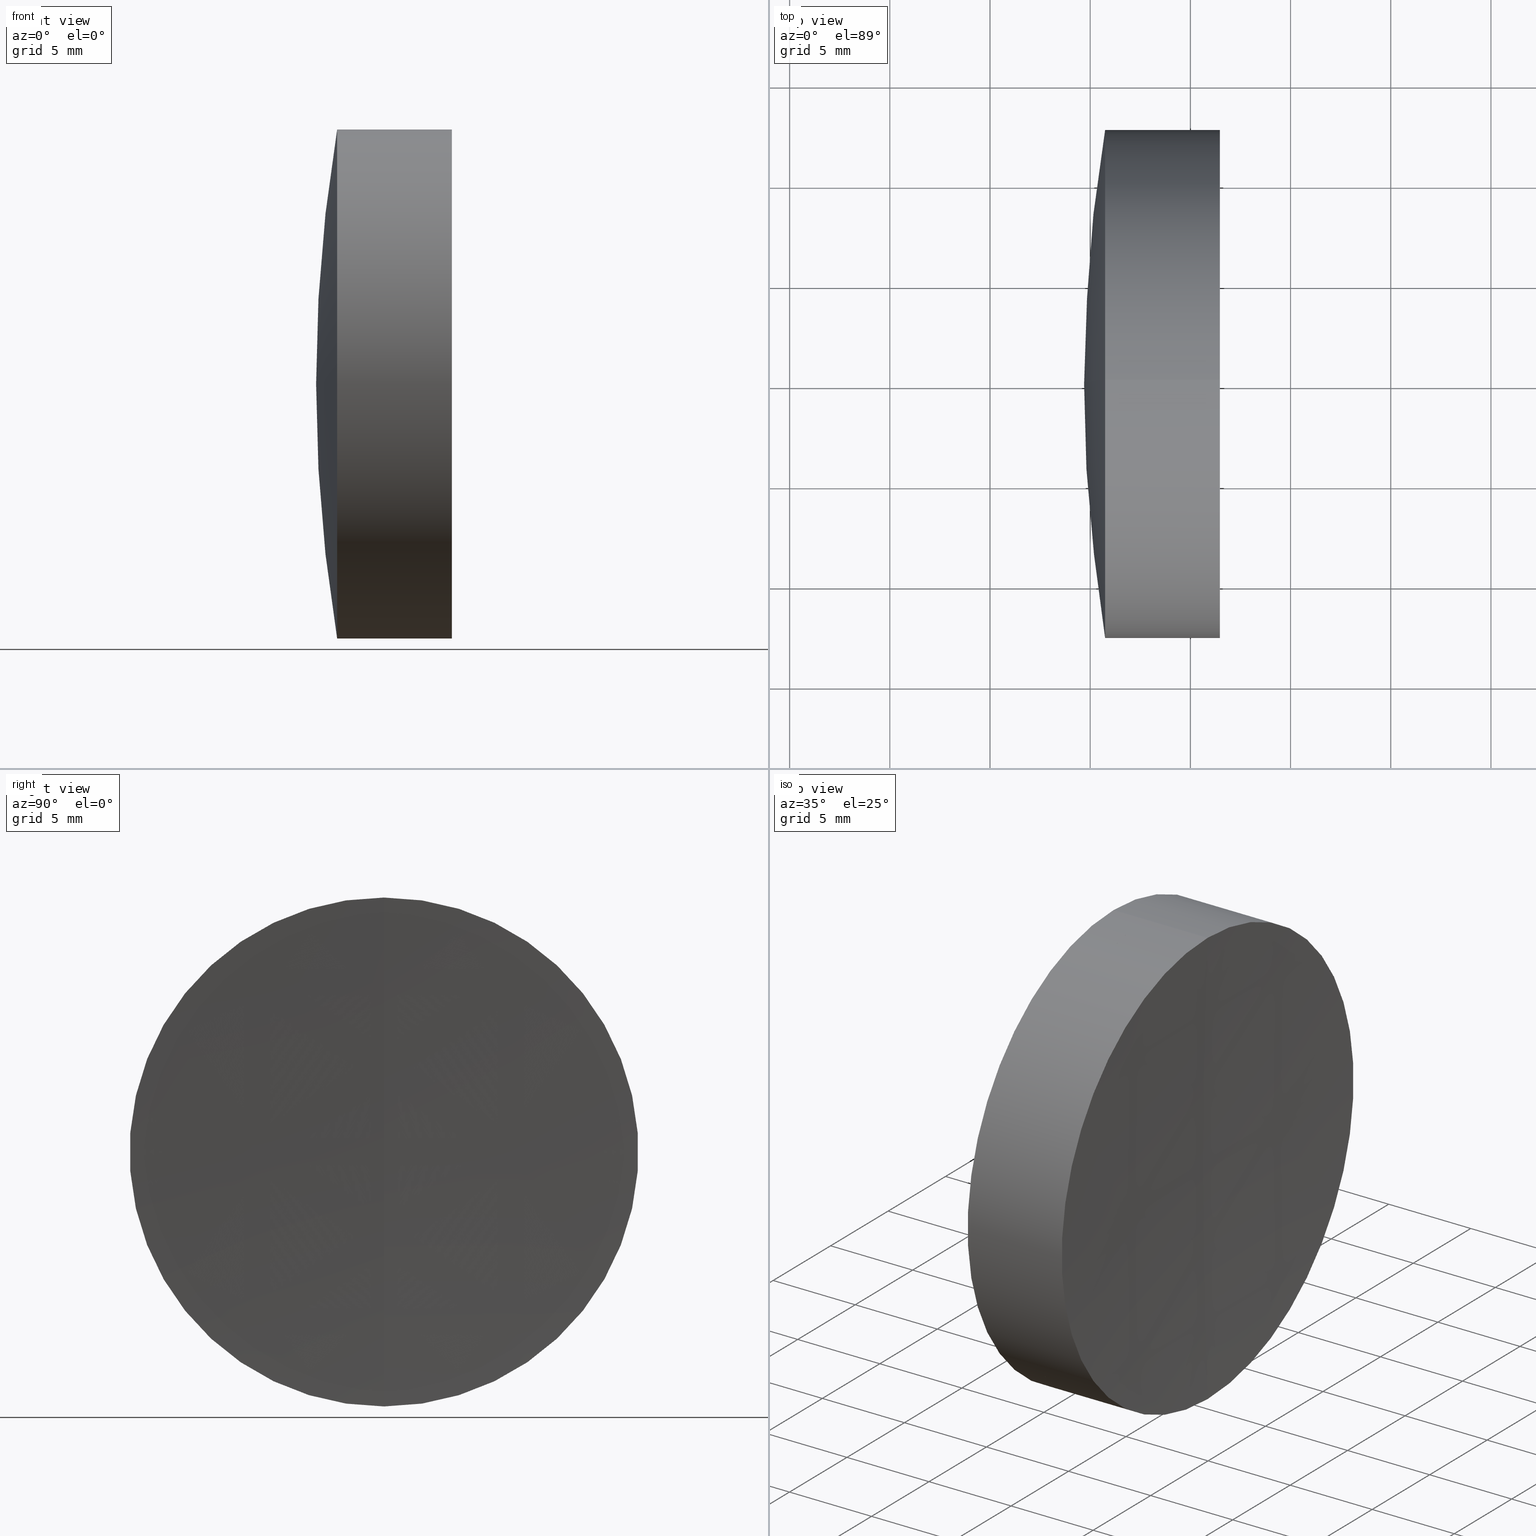
[diagram: canonical four-view strip — front | top / right | iso, engineering-drawing reading convention]
A machine part, canonical four-view strip (front | top / right | iso — engineering-drawing reading convention). The complete STEP part file that produces these views, byte-faithful:
ISO-10303-21;
HEADER;
FILE_DESCRIPTION (( 'STEP AP214' ),
    '1' );
FILE_NAME ('145061.STEP',
    '2019-05-14T06:18:58',
    ( 'user' ),
    ( '΢���й�' ),
    'SwSTEP 2.0',
    'SolidWorks 2016',
    '' );
FILE_SCHEMA (( 'AUTOMOTIVE_DESIGN' ));
ENDSEC;

DATA;
#1 = EDGE_CURVE ( 'NONE', #283, #70, #107, .T. ) ;
#2 = ORIENTED_EDGE ( 'NONE', *, *, #5, .T. ) ;
#3 = DIRECTION ( 'NONE',  ( -1.000000000000000000, -0.0000000000000000000, -0.0000000000000000000 ) ) ;
#4 = ORIENTED_EDGE ( 'NONE', *, *, #199, .F. ) ;
#5 = EDGE_CURVE ( 'NONE', #159, #330, #52, .T. ) ;
#6 = FILL_AREA_STYLE ('',( #224 ) ) ;
#7 = ORIENTED_EDGE ( 'NONE', *, *, #39, .F. ) ;
#8 = DIRECTION ( 'NONE',  ( 0.0000000000000000000, 0.0000000000000000000, 1.000000000000000000 ) ) ;
#9 = CARTESIAN_POINT ( 'NONE',  ( 297.7703518641218900, 0.0000000000000000000, 0.0000000000000000000 ) ) ;
#10 = DIRECTION ( 'NONE',  ( -0.0000000000000000000, 1.000000000000000000, 1.224646799147353200E-016 ) ) ;
#11 = AXIS2_PLACEMENT_3D ( 'NONE', #121, #318, #115 ) ;
#12 = DIRECTION ( 'NONE',  ( 0.0000000000000000000, 0.0000000000000000000, 1.000000000000000000 ) ) ;
#13 = DIRECTION ( 'NONE',  ( 0.0000000000000000000, 0.0000000000000000000, -1.000000000000000000 ) ) ;
#14 = AXIS2_PLACEMENT_3D ( 'NONE', #338, #303, #306 ) ;
#15 = CIRCLE ( 'NONE', #289, 12.70000000000005100 ) ;
#16 = CARTESIAN_POINT ( 'NONE',  ( 235.8074506907544200, 1.555301434917138000E-015, -12.69999999999999400 ) ) ;
#17 = ORIENTED_EDGE ( 'NONE', *, *, #1, .F. ) ;
#18 = ADVANCED_FACE ( 'NONE', ( #320 ), #241, .T. ) ;
#19 = CARTESIAN_POINT ( 'NONE',  ( 592.2958458084195900, 0.0000000000000000000, 0.0000000000000000000 ) ) ;
#20 = VECTOR ( 'NONE', #73, 1000.000000000000000 ) ;
#21 = EDGE_LOOP ( 'NONE', ( #233, #324, #133, #212 ) ) ;
#22 = CARTESIAN_POINT ( 'NONE',  ( -0.5519199926577972300, 0.0000000000000000000, 0.0000000000000000000 ) ) ;
#23 = AXIS2_PLACEMENT_3D ( 'NONE', #274, #204, #177 ) ;
#24 = DIRECTION ( 'NONE',  ( 0.0000000000000000000, 0.0000000000000000000, 1.000000000000000000 ) ) ;
#25 = UNCERTAINTY_MEASURE_WITH_UNIT (LENGTH_MEASURE( 1.000000000000000100E-005 ), #253, 'distance_accuracy_value', 'NONE');
#26 = EDGE_CURVE ( 'NONE', #102, #32, #166, .T. ) ;
#27 = EDGE_LOOP ( 'NONE', ( #226, #89, #134, #63 ) ) ;
#28 = PRESENTATION_LAYER_ASSIGNMENT (  '', '', ( #82 ) ) ;
#29 = LINE ( 'NONE', #309, #20 ) ;
#30 = EDGE_CURVE ( 'NONE', #341, #252, #44, .T. ) ;
#31 = PRODUCT_DEFINITION ( 'δ֪', '', #193, #124 ) ;
#32 = VERTEX_POINT ( 'NONE', #345 ) ;
#33 = AXIS2_PLACEMENT_3D ( 'NONE', #142, #40, #13 ) ;
#34 = SPHERICAL_SURFACE ( 'NONE', #251, 87.60000000000000900 ) ;
#35 = ORIENTED_EDGE ( 'NONE', *, *, #294, .F. ) ;
#36 = CARTESIAN_POINT ( 'NONE',  ( 211.0958458084194300, 0.0000000000000000000, -3.185954776904472300E-015 ) ) ;
#37 =( NAMED_UNIT ( * ) SI_UNIT ( $, .STERADIAN. ) SOLID_ANGLE_UNIT ( ) );
#38 =( NAMED_UNIT ( * ) SI_UNIT ( $, .STERADIAN. ) SOLID_ANGLE_UNIT ( ) );
#39 = EDGE_CURVE ( 'NONE', #283, #191, #316, .T. ) ;
#40 = DIRECTION ( 'NONE',  ( -0.0000000000000000000, -1.000000000000000000, -0.0000000000000000000 ) ) ;
#41 = FACE_OUTER_BOUND ( 'NONE', #21, .T. ) ;
#42 =( NAMED_UNIT ( * ) PLANE_ANGLE_UNIT ( ) SI_UNIT ( $, .RADIAN. ) );
#43 =( LENGTH_UNIT ( ) NAMED_UNIT ( * ) SI_UNIT ( .MILLI., .METRE. ) );
#44 = CIRCLE ( 'NONE', #319, 12.69999999999999400 ) ;
#45 =( LENGTH_UNIT ( ) NAMED_UNIT ( * ) SI_UNIT ( .MILLI., .METRE. ) );
#46 = SURFACE_STYLE_USAGE ( .BOTH. , #49 ) ;
#47 = ADVANCED_FACE ( 'NONE', ( #68 ), #267, .T. ) ;
#48 = VERTEX_POINT ( 'NONE', #312 ) ;
#49 = SURFACE_SIDE_STYLE ('',( #76 ) ) ;
#50 = CYLINDRICAL_SURFACE ( 'NONE', #304, 12.69999999999999400 ) ;
#51 = ORIENTED_EDGE ( 'NONE', *, *, #180, .T. ) ;
#52 = CIRCLE ( 'NONE', #84, 87.60000000000000900 ) ;
#53 = FILL_AREA_STYLE ('',( #95 ) ) ;
#54 = SURFACE_STYLE_FILL_AREA ( #6 ) ;
#55 =( NAMED_UNIT ( * ) PLANE_ANGLE_UNIT ( ) SI_UNIT ( $, .RADIAN. ) );
#56 = ORIENTED_EDGE ( 'NONE', *, *, #154, .F. ) ;
#57 = APPLICATION_CONTEXT ( 'automotive_design' ) ;
#58 = CIRCLE ( 'NONE', #160, 12.69999999999999400 ) ;
#59 =( GEOMETRIC_REPRESENTATION_CONTEXT ( 3 ) GLOBAL_UNCERTAINTY_ASSIGNED_CONTEXT ( ( #307 ) ) GLOBAL_UNIT_ASSIGNED_CONTEXT ( ( #64, #206, #301 ) ) REPRESENTATION_CONTEXT ( 'NONE', 'WORKASPACE' ) );
#60 = ORIENTED_EDGE ( 'NONE', *, *, #239, .F. ) ;
#61 = AXIS2_PLACEMENT_3D ( 'NONE', #197, #326, #8 ) ;
#62 = EDGE_LOOP ( 'NONE', ( #56, #216, #17 ) ) ;
#63 = ORIENTED_EDGE ( 'NONE', *, *, #112, .F. ) ;
#64 =( LENGTH_UNIT ( ) NAMED_UNIT ( * ) SI_UNIT ( .MILLI., .METRE. ) );
#65 = CARTESIAN_POINT ( 'NONE',  ( 294.6958458084194500, 0.0000000000000000000, -2.934967411348809700E-016 ) ) ;
#66 = PRODUCT_CONTEXT ( 'NONE', #235, 'mechanical' ) ;
#67 = DIRECTION ( 'NONE',  ( -1.000000000000000000, -0.0000000000000000000, -0.0000000000000000000 ) ) ;
#68 = FACE_OUTER_BOUND ( 'NONE', #140, .T. ) ;
#69 = DIRECTION ( 'NONE',  ( -1.000000000000000000, -0.0000000000000000000, -0.0000000000000000000 ) ) ;
#70 = VERTEX_POINT ( 'NONE', #141 ) ;
#71 =( GEOMETRIC_REPRESENTATION_CONTEXT ( 3 ) GLOBAL_UNCERTAINTY_ASSIGNED_CONTEXT ( ( #183 ) ) GLOBAL_UNIT_ASSIGNED_CONTEXT ( ( #43, #55, #37 ) ) REPRESENTATION_CONTEXT ( 'NONE', 'WORKASPACE' ) );
#72 = DIRECTION ( 'NONE',  ( 0.0000000000000000000, 0.0000000000000000000, 1.000000000000000000 ) ) ;
#73 = DIRECTION ( 'NONE',  ( -1.000000000000000000, -0.0000000000000000000, -0.0000000000000000000 ) ) ;
#74 = ADVANCED_BREP_SHAPE_REPRESENTATION ( '145061', ( #317, #113, #296 ), #59 ) ;
#75 = LINE ( 'NONE', #116, #103 ) ;
#76 = SURFACE_STYLE_FILL_AREA ( #53 ) ;
#77 = AXIS2_PLACEMENT_3D ( 'NONE', #22, #80, #24 ) ;
#78 = COLOUR_RGB ( '',1.000000000000000000, 1.000000000000000000, 1.000000000000000000 ) ;
#79 = ADVANCED_FACE ( 'NONE', ( #196 ), #266, .F. ) ;
#80 = DIRECTION ( 'NONE',  ( -1.000000000000000000, -0.0000000000000000000, -0.0000000000000000000 ) ) ;
#81 = ORIENTED_EDGE ( 'NONE', *, *, #149, .F. ) ;
#82 = STYLED_ITEM ( 'NONE', ( #322 ), #74 ) ;
#83 = CARTESIAN_POINT ( 'NONE',  ( 298.6958458084194500, 0.0000000000000000000, 2.177998203360935400E-015 ) ) ;
#84 = AXIS2_PLACEMENT_3D ( 'NONE', #284, #10, #278 ) ;
#85 = ORIENTED_EDGE ( 'NONE', *, *, #135, .T. ) ;
#86 = EDGE_CURVE ( 'NONE', #252, #276, #97, .T. ) ;
#87 = FACE_OUTER_BOUND ( 'NONE', #347, .T. ) ;
#88 = EDGE_CURVE ( 'NONE', #330, #192, #150, .T. ) ;
#89 = ORIENTED_EDGE ( 'NONE', *, *, #39, .T. ) ;
#90 = DIRECTION ( 'NONE',  ( 0.0000000000000000000, 0.0000000000000000000, 1.000000000000000000 ) ) ;
#91 = MECHANICAL_DESIGN_GEOMETRIC_PRESENTATION_REPRESENTATION (  '', ( #291 ), #71 ) ;
#92 = DIRECTION ( 'NONE',  ( -1.000000000000000000, -0.0000000000000000000, -0.0000000000000000000 ) ) ;
#93 = CARTESIAN_POINT ( 'NONE',  ( 297.7703518641218900, 0.0000000000000000000, 0.0000000000000000000 ) ) ;
#94 = ADVANCED_FACE ( 'NONE', ( #189 ), #34, .F. ) ;
#95 = FILL_AREA_STYLE_COLOUR ( '', #246 ) ;
#96 = ORIENTED_EDGE ( 'NONE', *, *, #240, .F. ) ;
#97 = CIRCLE ( 'NONE', #188, 77.39999999999999100 ) ;
#98 = DIRECTION ( 'NONE',  ( 0.0000000000000000000, -1.000000000000000000, 0.0000000000000000000 ) ) ;
#99 = DIRECTION ( 'NONE',  ( 0.0000000000000000000, 1.000000000000000000, 0.0000000000000000000 ) ) ;
#100 = DIRECTION ( 'NONE',  ( 1.000000000000000000, 0.0000000000000000000, 0.0000000000000000000 ) ) ;
#101 = CIRCLE ( 'NONE', #23, 12.70000000000001000 ) ;
#102 = VERTEX_POINT ( 'NONE', #83 ) ;
#103 = VECTOR ( 'NONE', #67, 1000.000000000000000 ) ;
#104 = EDGE_LOOP ( 'NONE', ( #269, #111, #51 ) ) ;
#105 = FILL_AREA_STYLE ('',( #165 ) ) ;
#106 = LINE ( 'NONE', #16, #268 ) ;
#107 = CIRCLE ( 'NONE', #214, 291.0999999999999700 ) ;
#108 = AXIS2_PLACEMENT_3D ( 'NONE', #255, #254, #264 ) ;
#109 = CARTESIAN_POINT ( 'NONE',  ( 297.7703518641218900, 1.555301434917138000E-015, -12.69999999999999400 ) ) ;
#110 = AXIS2_PLACEMENT_3D ( 'NONE', #9, #167, #250 ) ;
#111 = ORIENTED_EDGE ( 'NONE', *, *, #292, .T. ) ;
#112 = EDGE_CURVE ( 'NONE', #48, #32, #75, .T. ) ;
#113 = MANIFOLD_SOLID_BREP ( '��ת3', #329 ) ;
#114 = ORIENTED_EDGE ( 'NONE', *, *, #26, .T. ) ;
#115 = DIRECTION ( 'NONE',  ( 0.0000000000000000000, 0.0000000000000000000, -1.000000000000000000 ) ) ;
#116 = CARTESIAN_POINT ( 'NONE',  ( -0.5519199926577972300, 0.0000000000000000000, 12.70000000000003100 ) ) ;
#117 = AXIS2_PLACEMENT_3D ( 'NONE', #243, #234, #222 ) ;
#118 = DIRECTION ( 'NONE',  ( 0.0000000000000000000, 0.0000000000000000000, 1.000000000000000000 ) ) ;
#119 = CARTESIAN_POINT ( 'NONE',  ( 372.0958458084194300, 0.0000000000000000000, -5.032879853835137900E-015 ) ) ;
#120 = CYLINDRICAL_SURFACE ( 'NONE', #77, 12.70000000000003100 ) ;
#121 = CARTESIAN_POINT ( 'NONE',  ( 592.2958458084195900, 0.0000000000000000000, 0.0000000000000000000 ) ) ;
#122 = ADVANCED_FACE ( 'NONE', ( #265 ), #120, .T. ) ;
#123 = ORIENTED_EDGE ( 'NONE', *, *, #26, .F. ) ;
#124 = PRODUCT_DEFINITION_CONTEXT ( 'detailed design', #57, 'design' ) ;
#125 = DIRECTION ( 'NONE',  ( 0.0000000000000000000, 0.0000000000000000000, 1.000000000000000000 ) ) ;
#126 = DIRECTION ( 'NONE',  ( -1.000000000000000000, -0.0000000000000000000, -0.0000000000000000000 ) ) ;
#127 = EDGE_CURVE ( 'NONE', #32, #191, #182, .T. ) ;
#128 = DIRECTION ( 'NONE',  ( 0.0000000000000000000, 1.000000000000000000, 0.0000000000000000000 ) ) ;
#129 = EDGE_LOOP ( 'NONE', ( #162, #209, #186 ) ) ;
#130 = ORIENTED_EDGE ( 'NONE', *, *, #30, .T. ) ;
#131 = ORIENTED_EDGE ( 'NONE', *, *, #127, .T. ) ;
#132 = PRODUCT_RELATED_PRODUCT_CATEGORY ( 'part', '', ( #287 ) ) ;
#133 = ORIENTED_EDGE ( 'NONE', *, *, #239, .T. ) ;
#134 = ORIENTED_EDGE ( 'NONE', *, *, #127, .F. ) ;
#135 = EDGE_CURVE ( 'NONE', #330, #252, #106, .T. ) ;
#136 = AXIS2_PLACEMENT_3D ( 'NONE', #195, #126, #125 ) ;
#137 = CIRCLE ( 'NONE', #248, 291.0999999999999700 ) ;
#138 = ORIENTED_EDGE ( 'NONE', *, *, #30, .F. ) ;
#139 =( NAMED_UNIT ( * ) PLANE_ANGLE_UNIT ( ) SI_UNIT ( $, .RADIAN. ) );
#140 = EDGE_LOOP ( 'NONE', ( #221, #2, #35 ) ) ;
#141 = CARTESIAN_POINT ( 'NONE',  ( 301.1958458084195600, 0.0000000000000000000, -1.782473416158972500E-014 ) ) ;
#142 = CARTESIAN_POINT ( 'NONE',  ( 592.2958458084195900, 0.0000000000000000000, 0.0000000000000000000 ) ) ;
#143 = AXIS2_PLACEMENT_3D ( 'NONE', #261, #98, #175 ) ;
#144 = CARTESIAN_POINT ( 'NONE',  ( 295.7448798682297600, 0.0000000000000000000, 0.0000000000000000000 ) ) ;
#145 = ORIENTED_EDGE ( 'NONE', *, *, #170, .T. ) ;
#146 = DIRECTION ( 'NONE',  ( -1.000000000000000000, -0.0000000000000000000, -0.0000000000000000000 ) ) ;
#147 = STYLED_ITEM ( 'NONE', ( #178 ), #113 ) ;
#148 = DIRECTION ( 'NONE',  ( 0.0000000000000000000, 0.0000000000000000000, 1.000000000000000000 ) ) ;
#149 = EDGE_CURVE ( 'NONE', #48, #70, #137, .T. ) ;
#150 = CIRCLE ( 'NONE', #242, 12.69999999999999400 ) ;
#151 = DIRECTION ( 'NONE',  ( 0.0000000000000000000, 1.000000000000000000, 0.0000000000000000000 ) ) ;
#152 = ADVANCED_FACE ( 'NONE', ( #164 ), #314, .T. ) ;
#153 = DIRECTION ( 'NONE',  ( -1.000000000000000000, -0.0000000000000000000, -0.0000000000000000000 ) ) ;
#154 = EDGE_CURVE ( 'NONE', #48, #283, #308, .T. ) ;
#155 = EDGE_LOOP ( 'NONE', ( #272, #114, #131 ) ) ;
#156 = AXIS2_PLACEMENT_3D ( 'NONE', #339, #207, #332 ) ;
#157 = AXIS2_PLACEMENT_3D ( 'NONE', #119, #213, #285 ) ;
#158 = DIRECTION ( 'NONE',  ( -1.000000000000000000, -0.0000000000000000000, -0.0000000000000000000 ) ) ;
#159 = VERTEX_POINT ( 'NONE', #208 ) ;
#160 = AXIS2_PLACEMENT_3D ( 'NONE', #328, #210, #118 ) ;
#161 = CIRCLE ( 'NONE', #327, 87.60000000000000900 ) ;
#162 = ORIENTED_EDGE ( 'NONE', *, *, #5, .F. ) ;
#163 = CARTESIAN_POINT ( 'NONE',  ( 0.0000000000000000000, 0.0000000000000000000, 0.0000000000000000000 ) ) ;
#164 = FACE_OUTER_BOUND ( 'NONE', #104, .T. ) ;
#165 = FILL_AREA_STYLE_COLOUR ( '', #238 ) ;
#166 = CIRCLE ( 'NONE', #108, 87.60000000000000900 ) ;
#167 = DIRECTION ( 'NONE',  ( -1.000000000000000000, -0.0000000000000000000, -0.0000000000000000000 ) ) ;
#168 = DIRECTION ( 'NONE',  ( 0.0000000000000000000, 1.000000000000000000, -0.0000000000000000000 ) ) ;
#169 = DIRECTION ( 'NONE',  ( -0.0000000000000000000, 1.000000000000000000, 1.224646799147353200E-016 ) ) ;
#170 = EDGE_CURVE ( 'NONE', #102, #191, #161, .T. ) ;
#171 = SURFACE_STYLE_FILL_AREA ( #105 ) ;
#172 = CARTESIAN_POINT ( 'NONE',  ( 211.0958458084194300, 0.0000000000000000000, -3.185954776904472300E-015 ) ) ;
#173 = ORIENTED_EDGE ( 'NONE', *, *, #86, .T. ) ;
#174 = CARTESIAN_POINT ( 'NONE',  ( 372.0958458084194300, 0.0000000000000000000, -5.032879853835137900E-015 ) ) ;
#175 = DIRECTION ( 'NONE',  ( 0.0000000000000000000, 0.0000000000000000000, -1.000000000000000000 ) ) ;
#176 = ADVANCED_FACE ( 'NONE', ( #87 ), #249, .T. ) ;
#177 = DIRECTION ( 'NONE',  ( 0.0000000000000000000, 0.0000000000000000000, 1.000000000000000000 ) ) ;
#178 = PRESENTATION_STYLE_ASSIGNMENT (( #46 ) ) ;
#179 = DIRECTION ( 'NONE',  ( 0.0000000000000000000, -1.224646799147353500E-016, 1.000000000000000000 ) ) ;
#180 = EDGE_CURVE ( 'NONE', #341, #276, #334, .T. ) ;
#181 = CARTESIAN_POINT ( 'NONE',  ( 301.4730131422067500, 1.555301434917141200E-015, -12.70000000000001000 ) ) ;
#182 = CIRCLE ( 'NONE', #110, 12.70000000000005100 ) ;
#183 = UNCERTAINTY_MEASURE_WITH_UNIT (LENGTH_MEASURE( 1.000000000000000100E-005 ), #43, 'distance_accuracy_value', 'NONE');
#184 = CARTESIAN_POINT ( 'NONE',  ( 211.0958458084194300, 0.0000000000000000000, -3.185954776904472300E-015 ) ) ;
#185 = ORIENTED_EDGE ( 'NONE', *, *, #199, .T. ) ;
#186 = ORIENTED_EDGE ( 'NONE', *, *, #88, .F. ) ;
#187 = AXIS2_PLACEMENT_3D ( 'NONE', #340, #3, #321 ) ;
#188 = AXIS2_PLACEMENT_3D ( 'NONE', #174, #169, #179 ) ;
#189 = FACE_OUTER_BOUND ( 'NONE', #155, .T. ) ;
#190 = EDGE_LOOP ( 'NONE', ( #217, #85, #138, #60 ) ) ;
#191 = VERTEX_POINT ( 'NONE', #198 ) ;
#192 = VERTEX_POINT ( 'NONE', #302 ) ;
#193 = PRODUCT_DEFINITION_FORMATION_WITH_SPECIFIED_SOURCE ( '�κ�', '', #287, .NOT_KNOWN. ) ;
#194 = ORIENTED_EDGE ( 'NONE', *, *, #112, .T. ) ;
#195 = CARTESIAN_POINT ( 'NONE',  ( 301.4730131422067500, 0.0000000000000000000, 0.0000000000000000000 ) ) ;
#196 = FACE_OUTER_BOUND ( 'NONE', #258, .T. ) ;
#197 = CARTESIAN_POINT ( 'NONE',  ( -0.5519199926577972300, 0.0000000000000000000, 0.0000000000000000000 ) ) ;
#198 = CARTESIAN_POINT ( 'NONE',  ( 297.7703518641218900, 1.555301434917142800E-015, -12.70000000000003800 ) ) ;
#199 = EDGE_CURVE ( 'NONE', #283, #48, #101, .T. ) ;
#200 = FACE_OUTER_BOUND ( 'NONE', #295, .T. ) ;
#201 = CARTESIAN_POINT ( 'NONE',  ( 297.7703518641218900, 0.0000000000000000000, 0.0000000000000000000 ) ) ;
#202 = SURFACE_STYLE_USAGE ( .BOTH. , #245 ) ;
#203 = CLOSED_SHELL ( 'NONE', ( #47, #315, #176, #152, #300, #18 ) ) ;
#204 = DIRECTION ( 'NONE',  ( -1.000000000000000000, -0.0000000000000000000, -0.0000000000000000000 ) ) ;
#205 = SURFACE_STYLE_USAGE ( .BOTH. , #297 ) ;
#206 =( NAMED_UNIT ( * ) PLANE_ANGLE_UNIT ( ) SI_UNIT ( $, .RADIAN. ) );
#207 = DIRECTION ( 'NONE',  ( 0.0000000000000000000, 1.000000000000000000, 0.0000000000000000000 ) ) ;
#208 = CARTESIAN_POINT ( 'NONE',  ( 298.6958458084194500, 0.0000000000000000000, 2.177998203360935400E-015 ) ) ;
#209 = ORIENTED_EDGE ( 'NONE', *, *, #223, .T. ) ;
#210 = DIRECTION ( 'NONE',  ( -1.000000000000000000, -0.0000000000000000000, -0.0000000000000000000 ) ) ;
#211 = DIRECTION ( 'NONE',  ( 0.0000000000000000000, 0.0000000000000000000, 1.000000000000000000 ) ) ;
#212 = ORIENTED_EDGE ( 'NONE', *, *, #292, .F. ) ;
#213 = DIRECTION ( 'NONE',  ( 0.0000000000000000000, 1.000000000000000000, 0.0000000000000000000 ) ) ;
#214 = AXIS2_PLACEMENT_3D ( 'NONE', #19, #168, #72 ) ;
#215 =( GEOMETRIC_REPRESENTATION_CONTEXT ( 3 ) GLOBAL_UNCERTAINTY_ASSIGNED_CONTEXT ( ( #25 ) ) GLOBAL_UNIT_ASSIGNED_CONTEXT ( ( #253, #139, #244 ) ) REPRESENTATION_CONTEXT ( 'NONE', 'WORKASPACE' ) );
#216 = ORIENTED_EDGE ( 'NONE', *, *, #149, .T. ) ;
#217 = ORIENTED_EDGE ( 'NONE', *, *, #294, .T. ) ;
#218 = AXIS2_PLACEMENT_3D ( 'NONE', #172, #151, #343 ) ;
#219 = APPLICATION_PROTOCOL_DEFINITION ( 'draft international standard', 'automotive_design', 1998, #57 ) ;
#220 = SHAPE_DEFINITION_REPRESENTATION ( #260, #74 ) ;
#221 = ORIENTED_EDGE ( 'NONE', *, *, #223, .F. ) ;
#222 = DIRECTION ( 'NONE',  ( 0.0000000000000000000, 0.0000000000000000000, 1.000000000000000000 ) ) ;
#223 = EDGE_CURVE ( 'NONE', #159, #192, #271, .T. ) ;
#224 = FILL_AREA_STYLE_COLOUR ( '', #78 ) ;
#225 = FACE_OUTER_BOUND ( 'NONE', #277, .T. ) ;
#226 = ORIENTED_EDGE ( 'NONE', *, *, #154, .T. ) ;
#227 = DIRECTION ( 'NONE',  ( 0.0000000000000000000, 1.224646799147353200E-016, -1.000000000000000000 ) ) ;
#228 = APPLICATION_PROTOCOL_DEFINITION ( 'draft international standard', 'automotive_design', 1998, #235 ) ;
#229 = DIRECTION ( 'NONE',  ( 0.0000000000000000000, -1.000000000000000000, -1.224646799147353200E-016 ) ) ;
#230 = PRESENTATION_STYLE_ASSIGNMENT (( #202 ) ) ;
#231 = CARTESIAN_POINT ( 'NONE',  ( 592.2958458084195900, 0.0000000000000000000, 0.0000000000000000000 ) ) ;
#232 = CIRCLE ( 'NONE', #346, 12.69999999999999400 ) ;
#233 = ORIENTED_EDGE ( 'NONE', *, *, #135, .F. ) ;
#234 = DIRECTION ( 'NONE',  ( 0.0000000000000000000, 1.000000000000000000, 0.0000000000000000000 ) ) ;
#235 = APPLICATION_CONTEXT ( 'automotive_design' ) ;
#236 = PRESENTATION_LAYER_ASSIGNMENT (  '', '', ( #147 ) ) ;
#237 = CYLINDRICAL_SURFACE ( 'NONE', #187, 12.69999999999999400 ) ;
#238 = COLOUR_RGB ( '',1.000000000000000000, 1.000000000000000000, 1.000000000000000000 ) ;
#239 = EDGE_CURVE ( 'NONE', #192, #341, #29, .T. ) ;
#240 = EDGE_CURVE ( 'NONE', #191, #32, #15, .T. ) ;
#241 = SPHERICAL_SURFACE ( 'NONE', #156, 87.60000000000000900 ) ;
#242 = AXIS2_PLACEMENT_3D ( 'NONE', #93, #92, #247 ) ;
#243 = CARTESIAN_POINT ( 'NONE',  ( 372.0958458084194300, 0.0000000000000000000, -5.032879853835137900E-015 ) ) ;
#244 =( NAMED_UNIT ( * ) SI_UNIT ( $, .STERADIAN. ) SOLID_ANGLE_UNIT ( ) );
#245 = SURFACE_SIDE_STYLE ('',( #171 ) ) ;
#246 = COLOUR_RGB ( '',1.000000000000000000, 1.000000000000000000, 1.000000000000000000 ) ;
#247 = DIRECTION ( 'NONE',  ( 0.0000000000000000000, 0.0000000000000000000, 1.000000000000000000 ) ) ;
#248 = AXIS2_PLACEMENT_3D ( 'NONE', #231, #229, #227 ) ;
#249 = SPHERICAL_SURFACE ( 'NONE', #157, 77.39999999999999100 ) ;
#250 = DIRECTION ( 'NONE',  ( 0.0000000000000000000, 0.0000000000000000000, 1.000000000000000000 ) ) ;
#251 = AXIS2_PLACEMENT_3D ( 'NONE', #184, #99, #90 ) ;
#252 = VERTEX_POINT ( 'NONE', #311 ) ;
#253 =( LENGTH_UNIT ( ) NAMED_UNIT ( * ) SI_UNIT ( .MILLI., .METRE. ) );
#254 = DIRECTION ( 'NONE',  ( 0.0000000000000000000, -1.000000000000000000, 0.0000000000000000000 ) ) ;
#255 = CARTESIAN_POINT ( 'NONE',  ( 211.0958458084194300, 0.0000000000000000000, -3.185954776904472300E-015 ) ) ;
#256 = ADVANCED_FACE ( 'NONE', ( #225 ), #263, .F. ) ;
#257 = VECTOR ( 'NONE', #153, 1000.000000000000000 ) ;
#258 = EDGE_LOOP ( 'NONE', ( #123, #145, #342 ) ) ;
#259 = CARTESIAN_POINT ( 'NONE',  ( -0.5519199926577972300, 1.555301434917142400E-015, -12.70000000000003100 ) ) ;
#260 = PRODUCT_DEFINITION_SHAPE ( 'NONE', 'NONE',  #31 ) ;
#261 = CARTESIAN_POINT ( 'NONE',  ( 211.0958458084194300, 0.0000000000000000000, -3.185954776904472300E-015 ) ) ;
#262 = CARTESIAN_POINT ( 'NONE',  ( 297.7703518641218900, 0.0000000000000000000, 0.0000000000000000000 ) ) ;
#263 = SPHERICAL_SURFACE ( 'NONE', #11, 291.0999999999999700 ) ;
#264 = DIRECTION ( 'NONE',  ( 0.0000000000000000000, 0.0000000000000000000, -1.000000000000000000 ) ) ;
#265 = FACE_OUTER_BOUND ( 'NONE', #27, .T. ) ;
#266 = SPHERICAL_SURFACE ( 'NONE', #280, 87.60000000000000900 ) ;
#267 = SPHERICAL_SURFACE ( 'NONE', #218, 87.60000000000000900 ) ;
#268 = VECTOR ( 'NONE', #69, 1000.000000000000000 ) ;
#269 = ORIENTED_EDGE ( 'NONE', *, *, #86, .F. ) ;
#270 = MECHANICAL_DESIGN_GEOMETRIC_PRESENTATION_REPRESENTATION (  '', ( #147 ), #325 ) ;
#271 = CIRCLE ( 'NONE', #143, 87.60000000000000900 ) ;
#272 = ORIENTED_EDGE ( 'NONE', *, *, #170, .F. ) ;
#273 = DIRECTION ( 'NONE',  ( 0.0000000000000000000, 0.0000000000000000000, 1.000000000000000000 ) ) ;
#274 = CARTESIAN_POINT ( 'NONE',  ( 301.4730131422067500, 0.0000000000000000000, 0.0000000000000000000 ) ) ;
#275 = CARTESIAN_POINT ( 'NONE',  ( 211.0958458084194300, 0.0000000000000000000, -3.185954776904472300E-015 ) ) ;
#276 = VERTEX_POINT ( 'NONE', #65 ) ;
#277 = EDGE_LOOP ( 'NONE', ( #81, #4, #310 ) ) ;
#278 = DIRECTION ( 'NONE',  ( 0.0000000000000000000, -1.224646799147353200E-016, 1.000000000000000000 ) ) ;
#279 = UNCERTAINTY_MEASURE_WITH_UNIT (LENGTH_MEASURE( 1.000000000000000100E-005 ), #45, 'distance_accuracy_value', 'NONE');
#280 = AXIS2_PLACEMENT_3D ( 'NONE', #36, #128, #298 ) ;
#281 = DIRECTION ( 'NONE',  ( -0.0000000000000000000, 1.000000000000000000, 1.224646799147353200E-016 ) ) ;
#282 = DIRECTION ( 'NONE',  ( 0.0000000000000000000, -1.224646799147353200E-016, 1.000000000000000000 ) ) ;
#283 = VERTEX_POINT ( 'NONE', #181 ) ;
#284 = CARTESIAN_POINT ( 'NONE',  ( 211.0958458084194300, 0.0000000000000000000, -3.185954776904472300E-015 ) ) ;
#285 = DIRECTION ( 'NONE',  ( 0.0000000000000000000, 0.0000000000000000000, 1.000000000000000000 ) ) ;
#286 = PRESENTATION_LAYER_ASSIGNMENT (  '', '', ( #291 ) ) ;
#287 = PRODUCT ( '145061', '145061', '', ( #66 ) ) ;
#288 = CYLINDRICAL_SURFACE ( 'NONE', #61, 12.70000000000003100 ) ;
#289 = AXIS2_PLACEMENT_3D ( 'NONE', #201, #336, #211 ) ;
#290 = DIRECTION ( 'NONE',  ( 0.0000000000000000000, 0.0000000000000000000, 1.000000000000000000 ) ) ;
#291 = STYLED_ITEM ( 'NONE', ( #230 ), #317 ) ;
#292 = EDGE_CURVE ( 'NONE', #252, #341, #58, .T. ) ;
#293 = SPHERICAL_SURFACE ( 'NONE', #33, 291.0999999999999700 ) ;
#294 = EDGE_CURVE ( 'NONE', #192, #330, #232, .T. ) ;
#295 = EDGE_LOOP ( 'NONE', ( #7, #185, #194, #96 ) ) ;
#296 = AXIS2_PLACEMENT_3D ( 'NONE', #163, #273, #100 ) ;
#297 = SURFACE_SIDE_STYLE ('',( #54 ) ) ;
#298 = DIRECTION ( 'NONE',  ( 0.0000000000000000000, 0.0000000000000000000, 1.000000000000000000 ) ) ;
#299 = FACE_OUTER_BOUND ( 'NONE', #62, .T. ) ;
#300 = ADVANCED_FACE ( 'NONE', ( #41 ), #237, .T. ) ;
#301 =( NAMED_UNIT ( * ) SI_UNIT ( $, .STERADIAN. ) SOLID_ANGLE_UNIT ( ) );
#302 = CARTESIAN_POINT ( 'NONE',  ( 297.7703518641218900, 0.0000000000000000000, 12.69999999999999400 ) ) ;
#303 = DIRECTION ( 'NONE',  ( 0.0000000000000000000, -1.000000000000000000, 0.0000000000000000000 ) ) ;
#304 = AXIS2_PLACEMENT_3D ( 'NONE', #331, #158, #12 ) ;
#305 = DIRECTION ( 'NONE',  ( -1.000000000000000000, -0.0000000000000000000, -0.0000000000000000000 ) ) ;
#306 = DIRECTION ( 'NONE',  ( 0.0000000000000000000, 0.0000000000000000000, -1.000000000000000000 ) ) ;
#307 = UNCERTAINTY_MEASURE_WITH_UNIT (LENGTH_MEASURE( 1.000000000000000100E-005 ), #64, 'distance_accuracy_value', 'NONE');
#308 = CIRCLE ( 'NONE', #136, 12.70000000000001000 ) ;
#309 = CARTESIAN_POINT ( 'NONE',  ( 235.8074506907544200, 0.0000000000000000000, 12.69999999999999400 ) ) ;
#310 = ORIENTED_EDGE ( 'NONE', *, *, #1, .T. ) ;
#311 = CARTESIAN_POINT ( 'NONE',  ( 295.7448798682297600, 1.555301434917139000E-015, -12.70000000000001000 ) ) ;
#312 = CARTESIAN_POINT ( 'NONE',  ( 301.4730131422067500, 0.0000000000000000000, 12.70000000000001000 ) ) ;
#313 = ADVANCED_FACE ( 'NONE', ( #299 ), #293, .F. ) ;
#314 = SPHERICAL_SURFACE ( 'NONE', #117, 77.39999999999999100 ) ;
#315 = ADVANCED_FACE ( 'NONE', ( #323 ), #50, .T. ) ;
#316 = LINE ( 'NONE', #259, #257 ) ;
#317 = MANIFOLD_SOLID_BREP ( '��ת1', #203 ) ;
#318 = DIRECTION ( 'NONE',  ( -0.0000000000000000000, -1.000000000000000000, -0.0000000000000000000 ) ) ;
#319 = AXIS2_PLACEMENT_3D ( 'NONE', #144, #146, #148 ) ;
#320 = FACE_OUTER_BOUND ( 'NONE', #129, .T. ) ;
#321 = DIRECTION ( 'NONE',  ( 0.0000000000000000000, 0.0000000000000000000, 1.000000000000000000 ) ) ;
#322 = PRESENTATION_STYLE_ASSIGNMENT (( #205 ) ) ;
#323 = FACE_OUTER_BOUND ( 'NONE', #190, .T. ) ;
#324 = ORIENTED_EDGE ( 'NONE', *, *, #88, .T. ) ;
#325 =( GEOMETRIC_REPRESENTATION_CONTEXT ( 3 ) GLOBAL_UNCERTAINTY_ASSIGNED_CONTEXT ( ( #279 ) ) GLOBAL_UNIT_ASSIGNED_CONTEXT ( ( #45, #42, #38 ) ) REPRESENTATION_CONTEXT ( 'NONE', 'WORKASPACE' ) );
#326 = DIRECTION ( 'NONE',  ( -1.000000000000000000, -0.0000000000000000000, -0.0000000000000000000 ) ) ;
#327 = AXIS2_PLACEMENT_3D ( 'NONE', #275, #281, #282 ) ;
#328 = CARTESIAN_POINT ( 'NONE',  ( 295.7448798682297600, 0.0000000000000000000, 0.0000000000000000000 ) ) ;
#329 = CLOSED_SHELL ( 'NONE', ( #313, #122, #79, #94, #344, #256 ) ) ;
#330 = VERTEX_POINT ( 'NONE', #109 ) ;
#331 = CARTESIAN_POINT ( 'NONE',  ( 235.8074506907544200, 0.0000000000000000000, 0.0000000000000000000 ) ) ;
#332 = DIRECTION ( 'NONE',  ( 0.0000000000000000000, 0.0000000000000000000, 1.000000000000000000 ) ) ;
#333 = MECHANICAL_DESIGN_GEOMETRIC_PRESENTATION_REPRESENTATION (  '', ( #82 ), #215 ) ;
#334 = CIRCLE ( 'NONE', #14, 77.39999999999999100 ) ;
#335 = CARTESIAN_POINT ( 'NONE',  ( 295.7448798682297600, 0.0000000000000000000, 12.70000000000000500 ) ) ;
#336 = DIRECTION ( 'NONE',  ( -1.000000000000000000, -0.0000000000000000000, -0.0000000000000000000 ) ) ;
#337 = ORIENTED_EDGE ( 'NONE', *, *, #180, .F. ) ;
#338 = CARTESIAN_POINT ( 'NONE',  ( 372.0958458084194300, 0.0000000000000000000, -5.032879853835137900E-015 ) ) ;
#339 = CARTESIAN_POINT ( 'NONE',  ( 211.0958458084194300, 0.0000000000000000000, -3.185954776904472300E-015 ) ) ;
#340 = CARTESIAN_POINT ( 'NONE',  ( 235.8074506907544200, 0.0000000000000000000, 0.0000000000000000000 ) ) ;
#341 = VERTEX_POINT ( 'NONE', #335 ) ;
#342 = ORIENTED_EDGE ( 'NONE', *, *, #240, .T. ) ;
#343 = DIRECTION ( 'NONE',  ( 0.0000000000000000000, 0.0000000000000000000, 1.000000000000000000 ) ) ;
#344 = ADVANCED_FACE ( 'NONE', ( #200 ), #288, .T. ) ;
#345 = CARTESIAN_POINT ( 'NONE',  ( 297.7703518641218900, 0.0000000000000000000, 12.70000000000003500 ) ) ;
#346 = AXIS2_PLACEMENT_3D ( 'NONE', #262, #305, #290 ) ;
#347 = EDGE_LOOP ( 'NONE', ( #130, #173, #337 ) ) ;
ENDSEC;
END-ISO-10303-21;
